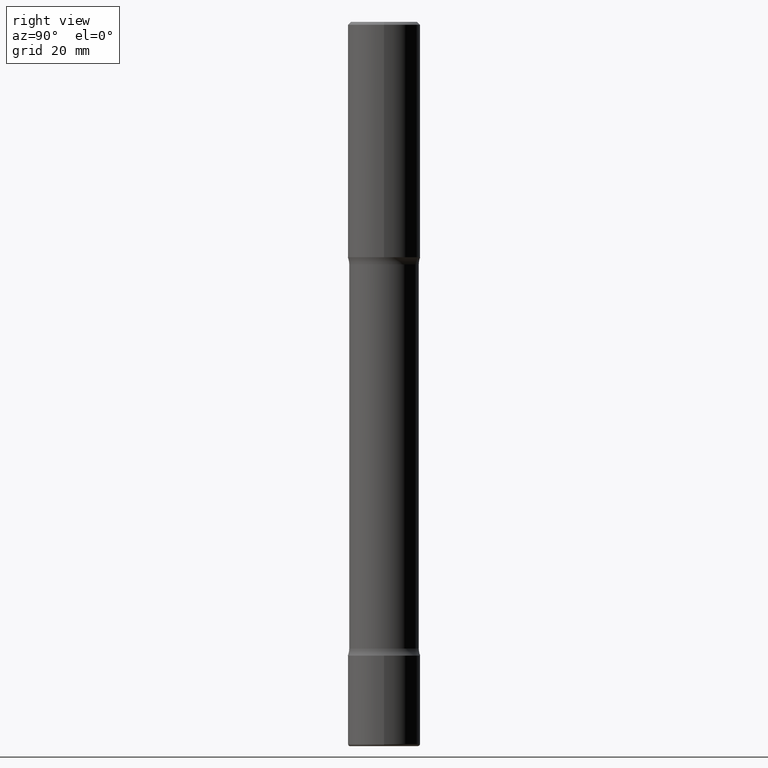
[diagram: clean part render]
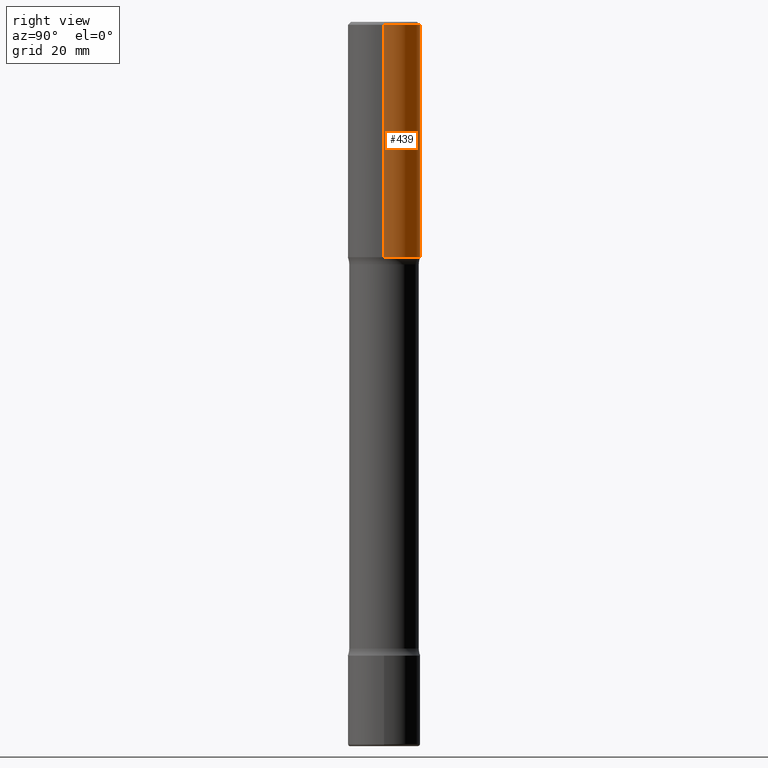
[diagram: same view with one face highlighted and labeled with its STEP entity id]
A machine part, right view. The second image highlights one B-rep face of the part: STEP entity #439.
In plain terms, the highlighted cylindrical surface (edge-blend (fillet) strip) has radius 6.35 mm, axis along (-0, 0, 1).
Its self-contained STEP definition (entity closure, byte-faithful):
#82 = CIRCLE ( 'NONE', #525, 0.2500000000000003331 ) ;
#106 = EDGE_CURVE ( 'NONE', #232, #208, #218, .T. ) ;
#123 = ORIENTED_EDGE ( 'NONE', *, *, #460, .F. ) ;
#130 = CARTESIAN_POINT ( 'NONE',  ( -0.2500000000000001110, 1.675911042644704563E-15, -0.02000000000000005246 ) ) ;
#134 = CIRCLE ( 'NONE', #515, 0.2500000000000001110 ) ;
#185 = AXIS2_PLACEMENT_3D ( 'NONE', #200, #198, #437 ) ;
#198 = DIRECTION ( 'NONE',  ( -2.445468806185136597E-29, 3.491481338843145583E-15, 1.000000000000000000 ) ) ;
#199 = VERTEX_POINT ( 'NONE', #559 ) ;
#200 = CARTESIAN_POINT ( 'NONE',  ( 0.000000000000000000, 0.000000000000000000, 0.000000000000000000 ) ) ;
#208 = VERTEX_POINT ( 'NONE', #130 ) ;
#214 = DIRECTION ( 'NONE',  ( 1.000000000000000000, -6.982962677686269077E-15, 0.000000000000000000 ) ) ;
#215 = DIRECTION ( 'NONE',  ( -2.445468806185136877E-29, 3.491481338843145188E-15, 1.000000000000000000 ) ) ;
#218 = LINE ( 'NONE', #254, #247 ) ;
#222 = VECTOR ( 'NONE', #341, 39.37007874015748143 ) ;
#232 = VERTEX_POINT ( 'NONE', #422 ) ;
#236 = VERTEX_POINT ( 'NONE', #553 ) ;
#240 = CARTESIAN_POINT ( 'NONE',  ( 4.890937612370285420E-31, -6.982962677686308865E-17, -0.02000000000000005246 ) ) ;
#247 = VECTOR ( 'NONE', #215, 39.37007874015748143 ) ;
#254 = CARTESIAN_POINT ( 'NONE',  ( -0.2500000000000002220, 1.776356839400252042E-15, -1.229733772563727566E-29 ) ) ;
#273 = EDGE_CURVE ( 'NONE', #236, #199, #474, .T. ) ;
#316 = CYLINDRICAL_SURFACE ( 'NONE', #185, 0.2500000000000002220 ) ;
#341 = DIRECTION ( 'NONE',  ( -2.445468806185136877E-29, 3.491481338843145188E-15, 1.000000000000000000 ) ) ;
#349 = ORIENTED_EDGE ( 'NONE', *, *, #106, .T. ) ;
#374 = EDGE_LOOP ( 'NONE', ( #452, #349, #123, #403 ) ) ;
#403 = ORIENTED_EDGE ( 'NONE', *, *, #273, .F. ) ;
#422 = CARTESIAN_POINT ( 'NONE',  ( -0.2500000000000003331, -1.095386561798233741E-15, -1.625000000000000000 ) ) ;
#437 = DIRECTION ( 'NONE',  ( 1.000000000000000000, -6.982962677686267499E-15, 4.876176775795936353E-29 ) ) ;
#439 = ADVANCED_FACE ( 'NONE', ( #532 ), #316, .T. ) ;
#447 = CARTESIAN_POINT ( 'NONE',  ( 3.973886810050846970E-29, -5.673657175620112213E-15, -1.625000000000000000 ) ) ;
#452 = ORIENTED_EDGE ( 'NONE', *, *, #555, .T. ) ;
#455 = DIRECTION ( 'NONE',  ( -2.445468806185136597E-29, 3.491481338843145583E-15, 1.000000000000000000 ) ) ;
#460 = EDGE_CURVE ( 'NONE', #199, #208, #134, .T. ) ;
#474 = LINE ( 'NONE', #512, #222 ) ;
#481 = DIRECTION ( 'NONE',  ( 1.000000000000000000, -6.982962677686267499E-15, 0.000000000000000000 ) ) ;
#483 = DIRECTION ( 'NONE',  ( -2.445468806185136597E-29, 3.491481338843145583E-15, 1.000000000000000000 ) ) ;
#512 = CARTESIAN_POINT ( 'NONE',  ( 0.2500000000000002220, -1.745740669421568453E-15, 1.219044193948985209E-29 ) ) ;
#515 = AXIS2_PLACEMENT_3D ( 'NONE', #240, #483, #481 ) ;
#525 = AXIS2_PLACEMENT_3D ( 'NONE', #447, #455, #214 ) ;
#532 = FACE_OUTER_BOUND ( 'NONE', #374, .T. ) ;
#553 = CARTESIAN_POINT ( 'NONE',  ( 0.2500000000000003331, -7.419397845041682046E-15, -1.625000000000000000 ) ) ;
#555 = EDGE_CURVE ( 'NONE', #236, #232, #82, .T. ) ;
#559 = CARTESIAN_POINT ( 'NONE',  ( 0.2500000000000001110, -1.784954126219746583E-15, -0.02000000000000005246 ) ) ;